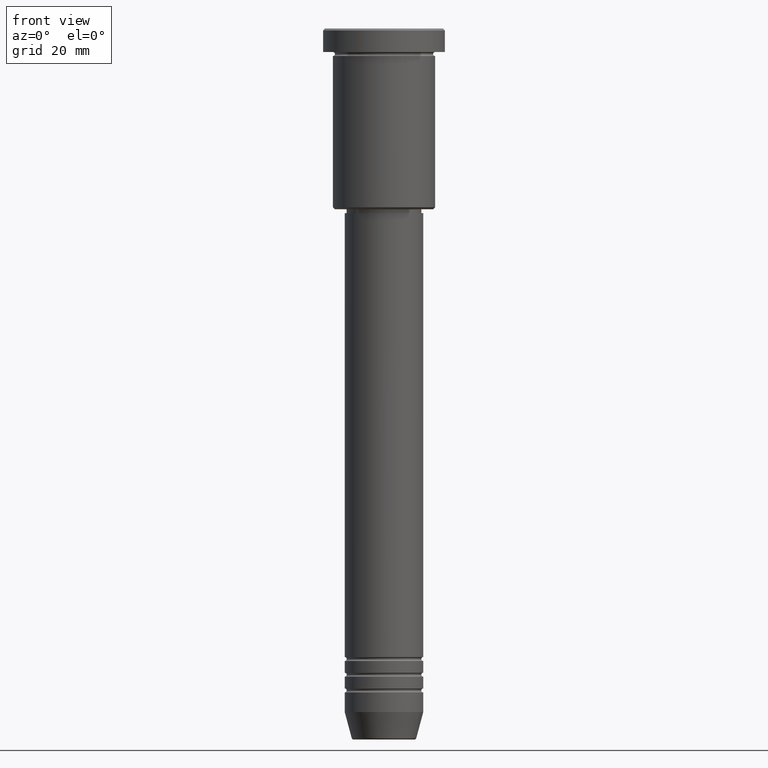
[diagram: clean part render]
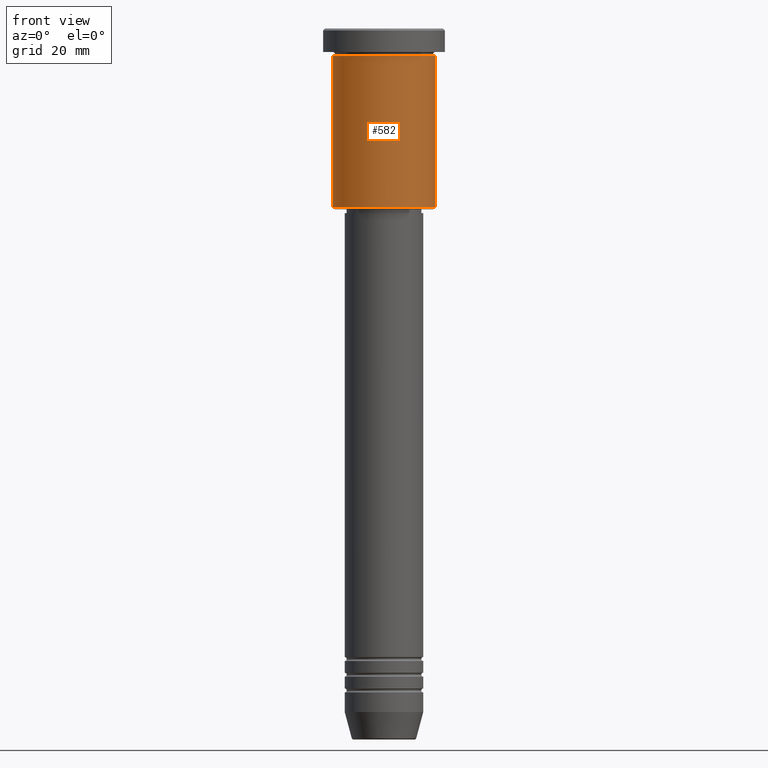
[diagram: same view with one face highlighted and labeled with its STEP entity id]
A machine part, front view. The second image highlights one B-rep face of the part: STEP entity #582.
In plain terms, the highlighted cylindrical surface (partial cylindrical patch) has radius 13 mm, axis along (-0, -0, 1).
Its self-contained STEP definition (entity closure, byte-faithful):
#44 = DIRECTION ( 'NONE',  ( -0.000000000000000000, -0.000000000000000000, 1.000000000000000000 ) ) ;
#88 = EDGE_CURVE ( 'NONE', #884, #465, #955, .T. ) ;
#122 = DIRECTION ( 'NONE',  ( -0.000000000000000000, -0.000000000000000000, 1.000000000000000000 ) ) ;
#138 = CARTESIAN_POINT ( 'NONE',  ( -13.00000000000000178, 1.592040838891559293E-15, 0.000000000000000000 ) ) ;
#181 = CARTESIAN_POINT ( 'NONE',  ( 0.000000000000000000, 0.000000000000000000, 0.000000000000000000 ) ) ;
#191 = ORIENTED_EDGE ( 'NONE', *, *, #393, .T. ) ;
#206 = CARTESIAN_POINT ( 'NONE',  ( 0.000000000000000000, 0.000000000000000000, -45.50000000000002132 ) ) ;
#235 = DIRECTION ( 'NONE',  ( -0.000000000000000000, -0.000000000000000000, 1.000000000000000000 ) ) ;
#240 = EDGE_CURVE ( 'NONE', #465, #1068, #675, .T. ) ;
#292 = VECTOR ( 'NONE', #44, 1000.000000000000000 ) ;
#294 = CIRCLE ( 'NONE', #945, 13.00000000000000178 ) ;
#393 = EDGE_CURVE ( 'NONE', #884, #1113, #294, .T. ) ;
#403 = CARTESIAN_POINT ( 'NONE',  ( -13.00000000000000178, 1.592040838891559293E-15, -45.50000000000002132 ) ) ;
#408 = EDGE_CURVE ( 'NONE', #1113, #1068, #670, .T. ) ;
#411 = CARTESIAN_POINT ( 'NONE',  ( 13.00000000000000178, 0.000000000000000000, -6.999999999999995559 ) ) ;
#437 = FACE_OUTER_BOUND ( 'NONE', #685, .T. ) ;
#465 = VERTEX_POINT ( 'NONE', #1147 ) ;
#565 = ORIENTED_EDGE ( 'NONE', *, *, #88, .F. ) ;
#570 = CARTESIAN_POINT ( 'NONE',  ( 13.00000000000000178, 0.000000000000000000, -45.50000000000002132 ) ) ;
#582 = ADVANCED_FACE ( 'NONE', ( #437 ), #997, .T. ) ;
#607 = DIRECTION ( 'NONE',  ( 1.000000000000000000, 0.000000000000000000, 0.000000000000000000 ) ) ;
#633 = DIRECTION ( 'NONE',  ( -0.000000000000000000, -0.000000000000000000, 1.000000000000000000 ) ) ;
#670 = LINE ( 'NONE', #763, #1006 ) ;
#672 = ORIENTED_EDGE ( 'NONE', *, *, #240, .F. ) ;
#675 = CIRCLE ( 'NONE', #985, 13.00000000000000178 ) ;
#685 = EDGE_LOOP ( 'NONE', ( #565, #191, #878, #672 ) ) ;
#763 = CARTESIAN_POINT ( 'NONE',  ( 13.00000000000000178, 0.000000000000000000, 0.000000000000000000 ) ) ;
#820 = CARTESIAN_POINT ( 'NONE',  ( 0.000000000000000000, 0.000000000000000000, -6.999999999999995559 ) ) ;
#878 = ORIENTED_EDGE ( 'NONE', *, *, #408, .T. ) ;
#884 = VERTEX_POINT ( 'NONE', #403 ) ;
#896 = DIRECTION ( 'NONE',  ( 1.000000000000000000, 0.000000000000000000, 0.000000000000000000 ) ) ;
#945 = AXIS2_PLACEMENT_3D ( 'NONE', #206, #122, #1033 ) ;
#955 = LINE ( 'NONE', #138, #292 ) ;
#976 = DIRECTION ( 'NONE',  ( -0.000000000000000000, -0.000000000000000000, 1.000000000000000000 ) ) ;
#985 = AXIS2_PLACEMENT_3D ( 'NONE', #820, #235, #607 ) ;
#997 = CYLINDRICAL_SURFACE ( 'NONE', #1081, 13.00000000000000178 ) ;
#1006 = VECTOR ( 'NONE', #976, 1000.000000000000000 ) ;
#1033 = DIRECTION ( 'NONE',  ( -1.000000000000000000, 0.000000000000000000, 0.000000000000000000 ) ) ;
#1068 = VERTEX_POINT ( 'NONE', #411 ) ;
#1081 = AXIS2_PLACEMENT_3D ( 'NONE', #181, #633, #896 ) ;
#1113 = VERTEX_POINT ( 'NONE', #570 ) ;
#1147 = CARTESIAN_POINT ( 'NONE',  ( -13.00000000000000178, 1.592040838891559293E-15, -6.999999999999995559 ) ) ;